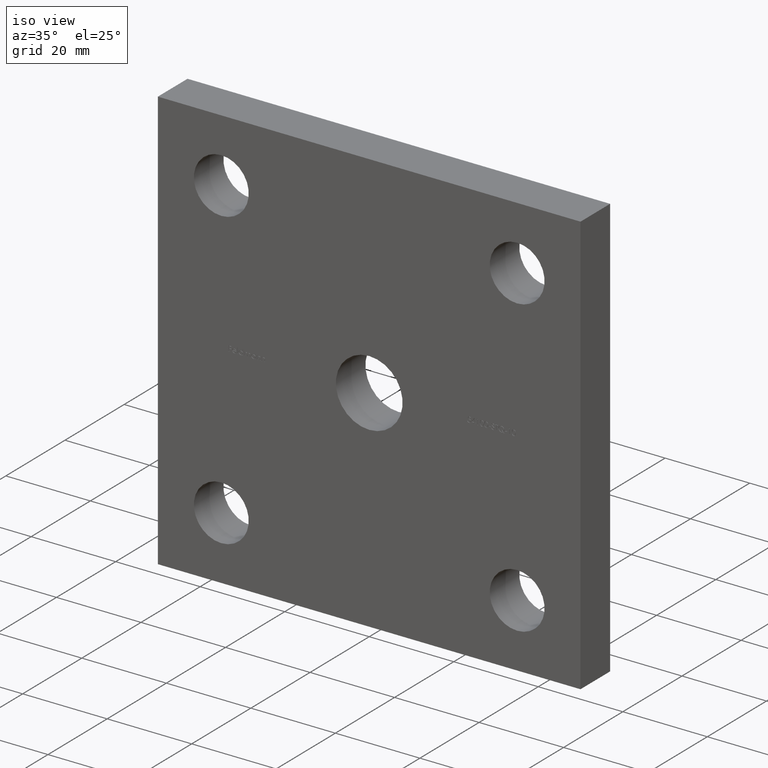
[diagram: clean part render]
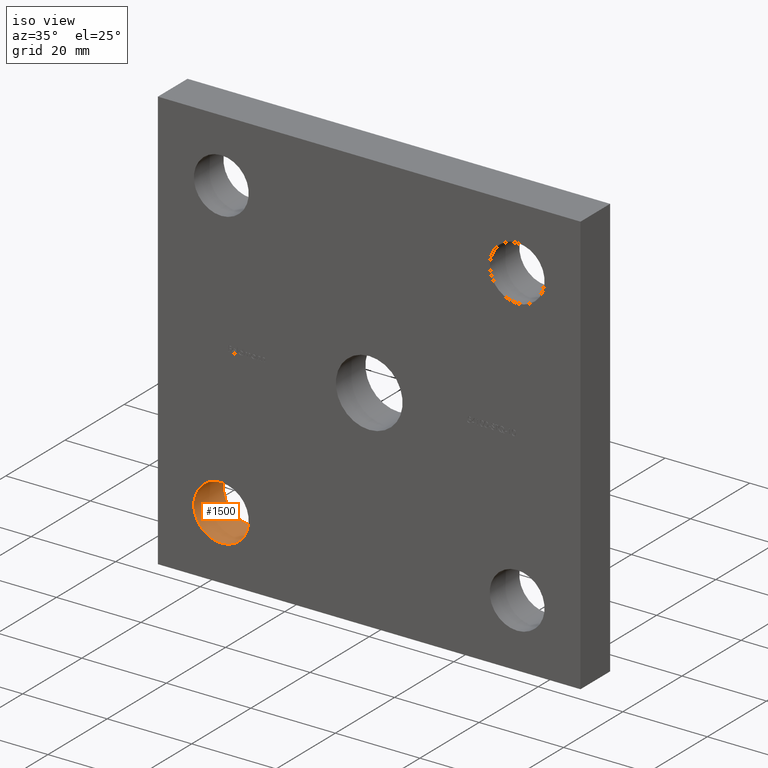
[diagram: same view with one face highlighted and labeled with its STEP entity id]
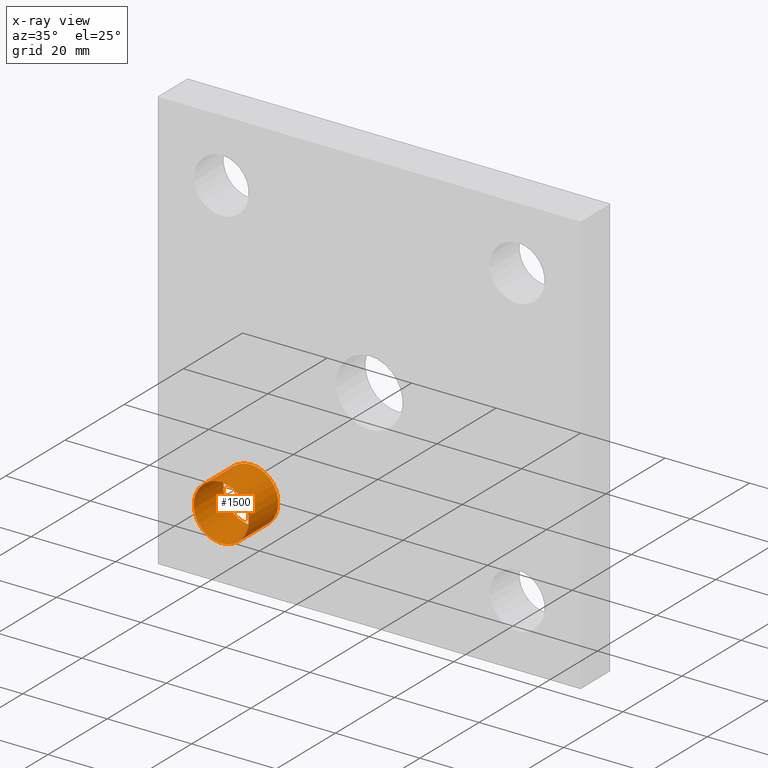
[diagram: x-ray of the same camera — body ghosted, the highlighted face saturated]
A machine part, iso view. The second image highlights one B-rep face of the part: STEP entity #1500.
The next image is the same camera in x-ray: the body ghosted, the highlighted face saturated — about 0% of this face is hidden behind the body in this view.
In plain terms, the highlighted cylindrical surface (bore or boss wall) has radius 6.5 mm, axis along (-0, 1, -0).
Its self-contained STEP definition (entity closure, byte-faithful):
#782 = AXIS2_PLACEMENT_3D ( 'NONE', #3427, #10981, #11081 ) ;
#1500 = ADVANCED_FACE ( 'NONE', ( #2254, #8844 ), #4807, .F. ) ;
#2254 = FACE_OUTER_BOUND ( 'NONE', #11774, .T. ) ;
#3392 = ORIENTED_EDGE ( 'NONE', *, *, #4324, .F. ) ;
#3427 = CARTESIAN_POINT ( 'NONE',  ( -35.00000000000000000, 0.000000000000000000, -35.00000000000000000 ) ) ;
#3557 = ORIENTED_EDGE ( 'NONE', *, *, #12166, .T. ) ;
#4324 = EDGE_CURVE ( 'NONE', #7817, #7817, #9820, .T. ) ;
#4807 = CYLINDRICAL_SURFACE ( 'NONE', #10113, 6.499999999999999112 ) ;
#5172 = CARTESIAN_POINT ( 'NONE',  ( -35.00000000000000000, 10.00000000000000000, -35.00000000000000000 ) ) ;
#5935 = VERTEX_POINT ( 'NONE', #11809 ) ;
#6164 = DIRECTION ( 'NONE',  ( 0.000000000000000000, 0.000000000000000000, 1.000000000000000000 ) ) ;
#7817 = VERTEX_POINT ( 'NONE', #13854 ) ;
#8844 = FACE_OUTER_BOUND ( 'NONE', #10463, .T. ) ;
#9820 = CIRCLE ( 'NONE', #782, 6.499999999999999112 ) ;
#10113 = AXIS2_PLACEMENT_3D ( 'NONE', #11660, #13804, #11752 ) ;
#10455 = DIRECTION ( 'NONE',  ( 0.000000000000000000, 1.000000000000000000, 0.000000000000000000 ) ) ;
#10463 = EDGE_LOOP ( 'NONE', ( #3557 ) ) ;
#10981 = DIRECTION ( 'NONE',  ( 0.000000000000000000, 1.000000000000000000, 0.000000000000000000 ) ) ;
#11081 = DIRECTION ( 'NONE',  ( 0.000000000000000000, 0.000000000000000000, 1.000000000000000000 ) ) ;
#11601 = AXIS2_PLACEMENT_3D ( 'NONE', #5172, #10455, #6164 ) ;
#11660 = CARTESIAN_POINT ( 'NONE',  ( -35.00000000000000000, 0.000000000000000000, -35.00000000000000000 ) ) ;
#11752 = DIRECTION ( 'NONE',  ( 0.000000000000000000, 0.000000000000000000, 1.000000000000000000 ) ) ;
#11774 = EDGE_LOOP ( 'NONE', ( #3392 ) ) ;
#11809 = CARTESIAN_POINT ( 'NONE',  ( -35.00000000000000000, 10.00000000000000000, -28.50000000000000355 ) ) ;
#12166 = EDGE_CURVE ( 'NONE', #5935, #5935, #12373, .T. ) ;
#12373 = CIRCLE ( 'NONE', #11601, 6.499999999999999112 ) ;
#13804 = DIRECTION ( 'NONE',  ( -0.000000000000000000, 1.000000000000000000, -0.000000000000000000 ) ) ;
#13854 = CARTESIAN_POINT ( 'NONE',  ( -35.00000000000000000, 0.000000000000000000, -28.50000000000000355 ) ) ;